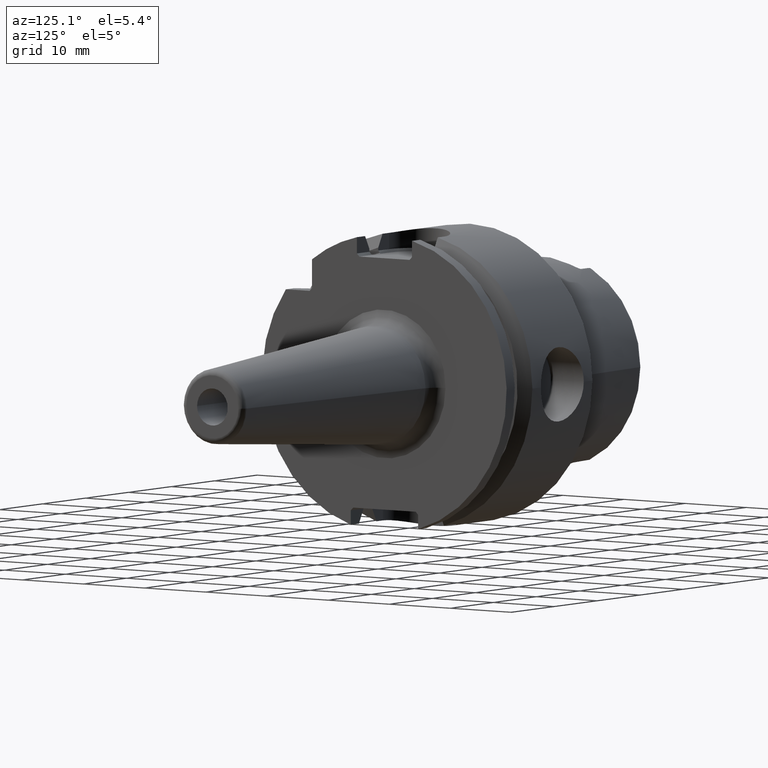
[diagram: clean part render]
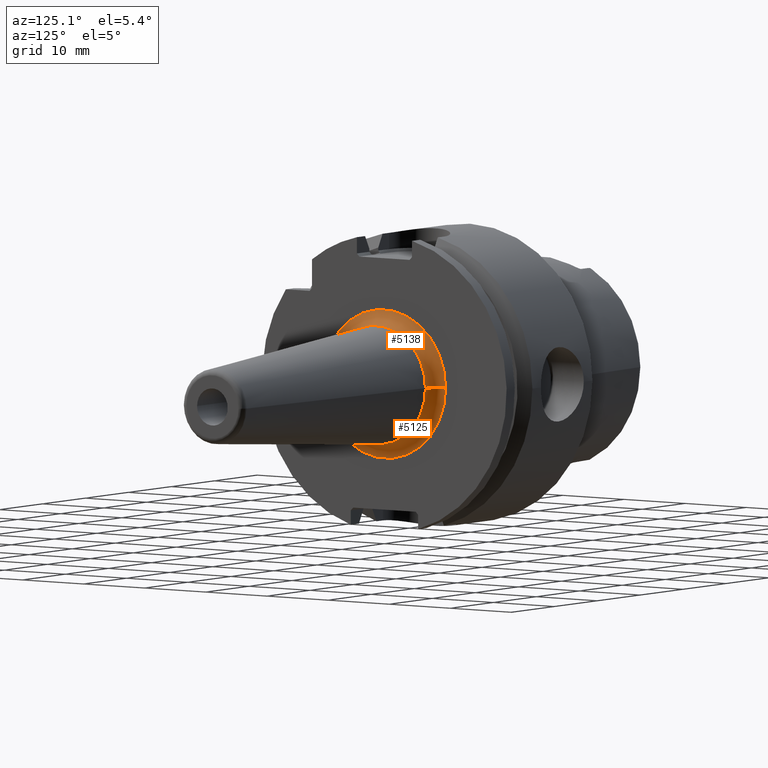
[diagram: same view with one multi-face feature highlighted, each face labeled with its STEP entity id]
A machine part, auxiliary view. The highlighted faces form ONE feature: a constant-radius fillet chain: 2 tangent blend faces with common blend radius 2 mm. The faces share edges in the B-rep.
Their STEP definitions:
[1] entity #5138 (Torus):
#1678=CARTESIAN_POINT('',(1.995E1,0.E0,0.E0));
#1679=DIRECTION('',(1.E0,0.E0,0.E0));
#1680=DIRECTION('',(0.E0,1.E0,0.E0));
#1681=AXIS2_PLACEMENT_3D('',#1678,#1679,#1680);
#1841=CARTESIAN_POINT('',(2.195E1,-1.000078434164E1,1.167108076849E-12));
#1842=DIRECTION('',(0.E0,-1.167017871229E-13,-1.E0));
#1843=DIRECTION('',(-1.E0,7.549516567451E-14,0.E0));
#1844=AXIS2_PLACEMENT_3D('',#1841,#1842,#1843);
#1846=CARTESIAN_POINT('',(2.195E1,1.000078434164E1,-1.163819041139E-12));
#1847=DIRECTION('',(0.E0,1.163721896624E-13,1.E0));
#1848=DIRECTION('',(-1.E0,-7.460698725481E-14,0.E0));
#1849=AXIS2_PLACEMENT_3D('',#1846,#1847,#1848);
#1856=CARTESIAN_POINT('',(2.179308180854E1,0.E0,0.E0));
#1857=DIRECTION('',(1.E0,0.E0,0.E0));
#1858=DIRECTION('',(0.E0,1.E0,0.E0));
#1859=AXIS2_PLACEMENT_3D('',#1856,#1857,#1858);
#3134=CARTESIAN_POINT('',(1.995E1,-1.000078434164E1,0.E0));
#3135=CARTESIAN_POINT('',(1.995E1,1.000078434164E1,0.E0));
#3136=VERTEX_POINT('',#3134);
#3137=VERTEX_POINT('',#3135);
#3138=CARTESIAN_POINT('',(2.179308180854E1,-8.006949674176E0,0.E0));
#3139=CARTESIAN_POINT('',(2.179308180854E1,8.006949674176E0,0.E0));
#3140=VERTEX_POINT('',#3138);
#3141=VERTEX_POINT('',#3139);
#5126=CARTESIAN_POINT('',(2.195E1,0.E0,0.E0));
#5127=DIRECTION('',(1.E0,0.E0,0.E0));
#5128=DIRECTION('',(0.E0,9.999316539899E-1,-1.169133649465E-2));
#5129=AXIS2_PLACEMENT_3D('',#5126,#5127,#5128);
#5130=TOROIDAL_SURFACE('',#5129,1.000078434164E1,2.E0);
#5131=ORIENTED_EDGE('',*,*,#4914,.F.);
#5132=ORIENTED_EDGE('',*,*,#5121,.T.);
#5134=ORIENTED_EDGE('',*,*,#5133,.T.);
#5135=ORIENTED_EDGE('',*,*,#5117,.F.);
#5136=EDGE_LOOP('',(#5131,#5132,#5134,#5135));
#5137=FACE_OUTER_BOUND('',#5136,.F.);
#5138=ADVANCED_FACE('',(#5137),#5130,.F.);
#1682=CIRCLE('',#1681,1.000078434164E1);
#1845=CIRCLE('',#1844,2.E0);
#1850=CIRCLE('',#1849,2.E0);
#1860=CIRCLE('',#1859,8.006949674176E0);
#4914=EDGE_CURVE('',#3137,#3136,#1682,.T.);
#5117=EDGE_CURVE('',#3136,#3140,#1845,.T.);
#5121=EDGE_CURVE('',#3137,#3141,#1850,.T.);
#5133=EDGE_CURVE('',#3141,#3140,#1860,.T.);
[2] entity #5125 (Torus):
#1673=CARTESIAN_POINT('',(1.995E1,0.E0,0.E0));
#1674=DIRECTION('',(1.E0,0.E0,0.E0));
#1675=DIRECTION('',(0.E0,-1.E0,0.E0));
#1676=AXIS2_PLACEMENT_3D('',#1673,#1674,#1675);
#1841=CARTESIAN_POINT('',(2.195E1,-1.000078434164E1,1.167108076849E-12));
#1842=DIRECTION('',(0.E0,-1.167017871229E-13,-1.E0));
#1843=DIRECTION('',(-1.E0,7.549516567451E-14,0.E0));
#1844=AXIS2_PLACEMENT_3D('',#1841,#1842,#1843);
#1846=CARTESIAN_POINT('',(2.195E1,1.000078434164E1,-1.163819041139E-12));
#1847=DIRECTION('',(0.E0,1.163721896624E-13,1.E0));
#1848=DIRECTION('',(-1.E0,-7.460698725481E-14,0.E0));
#1849=AXIS2_PLACEMENT_3D('',#1846,#1847,#1848);
#1880=CARTESIAN_POINT('',(2.179308180854E1,0.E0,0.E0));
#1881=DIRECTION('',(1.E0,0.E0,0.E0));
#1882=DIRECTION('',(0.E0,-1.E0,0.E0));
#1883=AXIS2_PLACEMENT_3D('',#1880,#1881,#1882);
#3134=CARTESIAN_POINT('',(1.995E1,-1.000078434164E1,0.E0));
#3135=CARTESIAN_POINT('',(1.995E1,1.000078434164E1,0.E0));
#3136=VERTEX_POINT('',#3134);
#3137=VERTEX_POINT('',#3135);
#3138=CARTESIAN_POINT('',(2.179308180854E1,-8.006949674176E0,0.E0));
#3139=CARTESIAN_POINT('',(2.179308180854E1,8.006949674176E0,0.E0));
#3140=VERTEX_POINT('',#3138);
#3141=VERTEX_POINT('',#3139);
#5111=CARTESIAN_POINT('',(2.195E1,0.E0,0.E0));
#5112=DIRECTION('',(1.E0,0.E0,0.E0));
#5113=DIRECTION('',(0.E0,-9.999316539899E-1,1.169133649465E-2));
#5114=AXIS2_PLACEMENT_3D('',#5111,#5112,#5113);
#5115=TOROIDAL_SURFACE('',#5114,1.000078434164E1,2.E0);
#5116=ORIENTED_EDGE('',*,*,#4912,.F.);
#5118=ORIENTED_EDGE('',*,*,#5117,.T.);
#5120=ORIENTED_EDGE('',*,*,#5119,.T.);
#5122=ORIENTED_EDGE('',*,*,#5121,.F.);
#5123=EDGE_LOOP('',(#5116,#5118,#5120,#5122));
#5124=FACE_OUTER_BOUND('',#5123,.F.);
#5125=ADVANCED_FACE('',(#5124),#5115,.F.);
#1677=CIRCLE('',#1676,1.000078434164E1);
#1845=CIRCLE('',#1844,2.E0);
#1850=CIRCLE('',#1849,2.E0);
#1884=CIRCLE('',#1883,8.006949674176E0);
#4912=EDGE_CURVE('',#3136,#3137,#1677,.T.);
#5117=EDGE_CURVE('',#3136,#3140,#1845,.T.);
#5119=EDGE_CURVE('',#3140,#3141,#1884,.T.);
#5121=EDGE_CURVE('',#3137,#3141,#1850,.T.);